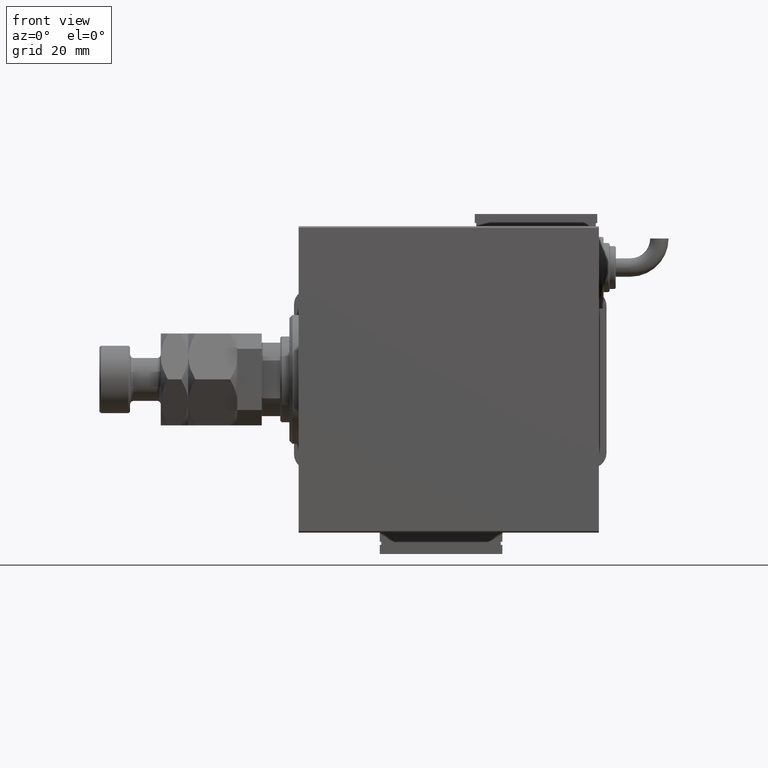
[diagram: clean part render]
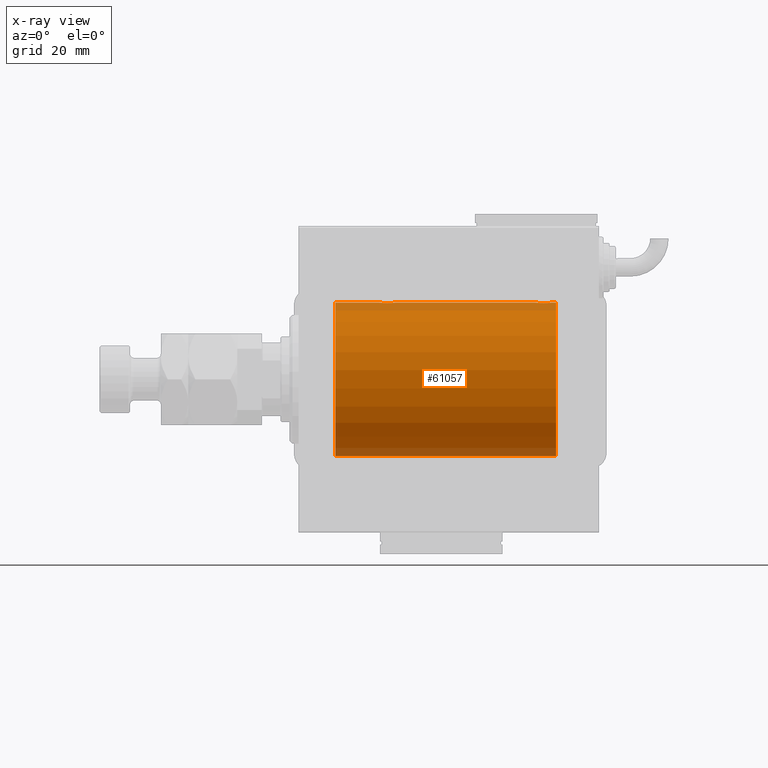
[diagram: x-ray — body ghosted, one internal face saturated and labeled with its STEP entity id]
A machine part, front view, then the same camera in x-ray: the body is ghosted and one INTERNAL B-rep face — a face not visible from any outside direction — is saturated and labeled: STEP entity #61057.
In plain terms, the highlighted cylindrical surface (partial cylindrical patch) has radius 25 mm, axis along (-1, -0, -0).
Its self-contained STEP definition (entity closure, byte-faithful):
#1568 = CARTESIAN_POINT ( 'NONE',  ( 84.00000000000000000, 3.061616997868382254E-15, -25.00000000000000000 ) ) ;
#1970 = CARTESIAN_POINT ( 'NONE',  ( 77.82988709719073483, -1.252049606094335799, 24.96900299967626680 ) ) ;
#2049 = AXIS2_PLACEMENT_3D ( 'NONE', #56842, #17688, #3902 ) ;
#2091 = EDGE_CURVE ( 'NONE', #7815, #15046, #14760, .T. ) ;
#2277 = CARTESIAN_POINT ( 'NONE',  ( 77.57985090779074255, -0.6480119923854255060, 24.99212088949390775 ) ) ;
#2335 = CARTESIAN_POINT ( 'NONE',  ( 30.52256774340189693, -1.989585286700249700, 24.92087098724766747 ) ) ;
#3902 = DIRECTION ( 'NONE',  ( 0.000000000000000000, 0.000000000000000000, 1.000000000000000000 ) ) ;
#4083 = CARTESIAN_POINT ( 'NONE',  ( 27.01250184165601809, -1.525407911884372192, 24.95379469572361941 ) ) ;
#5262 = ORIENTED_EDGE ( 'NONE', *, *, #28047, .F. ) ;
#5883 = AXIS2_PLACEMENT_3D ( 'NONE', #29724, #48838, #25028 ) ;
#6128 = EDGE_CURVE ( 'NONE', #7815, #43250, #59913, .T. ) ;
#6185 = ORIENTED_EDGE ( 'NONE', *, *, #2091, .T. ) ;
#6762 = EDGE_CURVE ( 'NONE', #11046, #54743, #54265, .T. ) ;
#7018 = CARTESIAN_POINT ( 'NONE',  ( 28.35095609830903740, -2.419770561643915130, 24.88263927071751169 ) ) ;
#7323 = CARTESIAN_POINT ( 'NONE',  ( 31.50000000000000000, -2.695968940278339017E-15, 25.00000000000000000 ) ) ;
#7633 = CARTESIAN_POINT ( 'NONE',  ( 28.83293504821940090, -2.499872792855088122, 24.87469871246082320 ) ) ;
#7815 = VERTEX_POINT ( 'NONE', #1568 ) ;
#8180 = CARTESIAN_POINT ( 'NONE',  ( 82.43349355239749343, -0.6588655613945808565, 24.99312727339970053 ) ) ;
#8790 = CARTESIAN_POINT ( 'NONE',  ( 81.52256774340189338, -1.989585286700245925, 24.92087098724765681 ) ) ;
#11046 = VERTEX_POINT ( 'NONE', #53806 ) ;
#11649 = CARTESIAN_POINT ( 'NONE',  ( 78.74616804575498463, -2.169003991399877762, 24.90589728951138682 ) ) ;
#11710 = CARTESIAN_POINT ( 'NONE',  ( 30.65121133559112820, -1.884161199660620900, 24.92916496727982434 ) ) ;
#12020 = CARTESIAN_POINT ( 'NONE',  ( 31.43349355239747567, -0.6588655613945894052, 24.99312727339970053 ) ) ;
#12326 = CARTESIAN_POINT ( 'NONE',  ( 27.74616804575498108, -2.169003991399877318, 24.90589728951138326 ) ) ;
#12881 = CARTESIAN_POINT ( 'NONE',  ( 81.88185954148649159, -1.653834020452933817, 24.94550385189585029 ) ) ;
#13488 = CARTESIAN_POINT ( 'NONE',  ( 80.80435660916305096, -2.372734907014176553, 24.88722742718433523 ) ) ;
#13724 = DIRECTION ( 'NONE',  ( -1.000000000000000000, 0.000000000000000000, 0.000000000000000000 ) ) ;
#14148 = ORIENTED_EDGE ( 'NONE', *, *, #6762, .T. ) ;
#14760 = LINE ( 'NONE', #33894, #26791 ) ;
#14877 = VECTOR ( 'NONE', #29062, 1000.000000000000000 ) ;
#14982 = AXIS2_PLACEMENT_3D ( 'NONE', #48182, #13724, #28459 ) ;
#15046 = VERTEX_POINT ( 'NONE', #52080 ) ;
#15358 = VECTOR ( 'NONE', #45778, 1000.000000000000000 ) ;
#16059 = CARTESIAN_POINT ( 'NONE',  ( 77.50000000000001421, -1.940203396391078535E-23, 25.00000000000000000 ) ) ;
#16368 = CARTESIAN_POINT ( 'NONE',  ( 78.47463817756926119, -1.987446652080270271, 24.92104239223421303 ) ) ;
#16425 = CARTESIAN_POINT ( 'NONE',  ( 29.32596570039460104, -2.484007091859769645, 24.87630842367763506 ) ) ;
#16674 = CARTESIAN_POINT ( 'NONE',  ( 79.35095609830904095, -2.419770561643911133, 24.88263927071751169 ) ) ;
#16734 = CARTESIAN_POINT ( 'NONE',  ( 26.75239748980448695, -1.106703319666887397, 24.97594585958023572 ) ) ;
#17252 = CARTESIAN_POINT ( 'NONE',  ( 84.00000000000000000, 0.000000000000000000, 25.00000000000000000 ) ) ;
#17688 = DIRECTION ( 'NONE',  ( -1.000000000000000000, -0.000000000000000000, -0.000000000000000000 ) ) ;
#18201 = CARTESIAN_POINT ( 'NONE',  ( 80.32596570039464723, -2.484007091859765204, 24.87630842367763861 ) ) ;
#18709 = DIRECTION ( 'NONE',  ( -1.000000000000000000, -0.000000000000000000, -0.000000000000000000 ) ) ;
#20004 = VECTOR ( 'NONE', #18709, 1000.000000000000000 ) ;
#21074 = CARTESIAN_POINT ( 'NONE',  ( 78.01250184165604651, -1.525407911884365530, 24.95379469572362297 ) ) ;
#21286 = LINE ( 'NONE', #59493, #14877 ) ;
#21347 = VERTEX_POINT ( 'NONE', #35096 ) ;
#21437 = CARTESIAN_POINT ( 'NONE',  ( 31.16827641493956591, -1.255214705003184106, 24.96884293994578385 ) ) ;
#21547 = EDGE_CURVE ( 'NONE', #11046, #55002, #21286, .T. ) ;
#22246 = EDGE_LOOP ( 'NONE', ( #22859, #6185, #51039, #51209, #14148, #55490, #23890, #5262 ) ) ;
#22859 = ORIENTED_EDGE ( 'NONE', *, *, #6128, .F. ) ;
#23106 = LINE ( 'NONE', #36918, #20004 ) ;
#23890 = ORIENTED_EDGE ( 'NONE', *, *, #55555, .T. ) ;
#25028 = DIRECTION ( 'NONE',  ( 0.000000000000000000, 0.000000000000000000, 1.000000000000000000 ) ) ;
#26087 = CARTESIAN_POINT ( 'NONE',  ( 79.19211657594196652, -2.371528299825750974, 24.88734287464371420 ) ) ;
#26143 = CARTESIAN_POINT ( 'NONE',  ( 28.19211657594193809, -2.371528299825754083, 24.88734287464370709 ) ) ;
#26791 = VECTOR ( 'NONE', #52991, 1000.000000000000000 ) ;
#27305 = CARTESIAN_POINT ( 'NONE',  ( 81.98538033717099438, -1.528152964861309915, 24.95362559291379156 ) ) ;
#27616 = CARTESIAN_POINT ( 'NONE',  ( 81.10723845838413126, -2.247417070759898383, 24.89885693081947338 ) ) ;
#28047 = EDGE_CURVE ( 'NONE', #43250, #21347, #23106, .T. ) ;
#28459 = DIRECTION ( 'NONE',  ( 0.000000000000000000, 0.000000000000000000, 1.000000000000000000 ) ) ;
#29062 = DIRECTION ( 'NONE',  ( -1.000000000000000000, -0.000000000000000000, -0.000000000000000000 ) ) ;
#29724 = CARTESIAN_POINT ( 'NONE',  ( 84.00000000000000000, 0.000000000000000000, 0.000000000000000000 ) ) ;
#30466 = CARTESIAN_POINT ( 'NONE',  ( 77.51582159942344674, -0.3254210271412246169, 24.99840249400844883 ) ) ;
#30781 = CARTESIAN_POINT ( 'NONE',  ( 78.88963203491135801, -2.245863995402903601, 24.89899750494197050 ) ) ;
#30840 = CARTESIAN_POINT ( 'NONE',  ( 30.88185954148645962, -1.653834020452941589, 24.94550385189585029 ) ) ;
#31091 = CARTESIAN_POINT ( 'NONE',  ( 79.83293504821945419, -2.499872792855085013, 24.87469871246082675 ) ) ;
#31151 = CARTESIAN_POINT ( 'NONE',  ( 31.49999999999998579, -0.3305063766663723368, 25.00000000000000000 ) ) ;
#31457 = CARTESIAN_POINT ( 'NONE',  ( 28.67052319885732103, -2.483544361357276742, 24.87635491893501438 ) ) ;
#32014 = CARTESIAN_POINT ( 'NONE',  ( 81.65121133559114242, -1.884161199660613351, 24.92916496727982434 ) ) ;
#32317 = CARTESIAN_POINT ( 'NONE',  ( 82.16827641493958367, -1.255214705003178777, 24.96884293994578030 ) ) ;
#32425 = FACE_OUTER_BOUND ( 'NONE', #22246, .T. ) ;
#32936 = CARTESIAN_POINT ( 'NONE',  ( 81.25084023924057419, -2.170728182476720836, 24.90574631553725027 ) ) ;
#33894 = CARTESIAN_POINT ( 'NONE',  ( 84.00000000000000000, 3.061616997868382254E-15, -25.00000000000000000 ) ) ;
#34345 = VERTEX_POINT ( 'NONE', #52775 ) ;
#34553 = CARTESIAN_POINT ( 'NONE',  ( 11.99999999999999645, 0.000000000000000000, 25.00000000000000000 ) ) ;
#35096 = CARTESIAN_POINT ( 'NONE',  ( 82.50000000000001421, 2.858952873890094713E-15, 25.00000000000000000 ) ) ;
#35191 = CARTESIAN_POINT ( 'NONE',  ( 77.50000000000004263, -0.1631750940176218967, 25.00000000000000355 ) ) ;
#35247 = CARTESIAN_POINT ( 'NONE',  ( 27.47463817756919369, -1.987446652080268938, 24.92104239223420592 ) ) ;
#35560 = CARTESIAN_POINT ( 'NONE',  ( 30.10723845838410284, -2.247417070759902380, 24.89885693081946272 ) ) ;
#35819 = CARTESIAN_POINT ( 'NONE',  ( 79.67052319885733880, -2.483544361357273189, 24.87635491893502149 ) ) ;
#35876 = CARTESIAN_POINT ( 'NONE',  ( 29.64560666148631896, -2.420689345803764159, 24.88254961038873958 ) ) ;
#36181 = CARTESIAN_POINT ( 'NONE',  ( 26.51582159942343608, -0.3254210271412232292, 24.99840249400844883 ) ) ;
#36481 = CARTESIAN_POINT ( 'NONE',  ( 26.57985090779070703, -0.6480119923854241737, 24.99212088949390420 ) ) ;
#36918 = CARTESIAN_POINT ( 'NONE',  ( 84.00000000000000000, 0.000000000000000000, 25.00000000000000000 ) ) ;
#37330 = CARTESIAN_POINT ( 'NONE',  ( 82.50000000000001421, 2.858952873890094713E-15, 25.00000000000000000 ) ) ;
#37431 = CYLINDRICAL_SURFACE ( 'NONE', #2049, 25.00000000000000000 ) ;
#37820 = EDGE_CURVE ( 'NONE', #34345, #54743, #49536, .T. ) ;
#39325 = CARTESIAN_POINT ( 'NONE',  ( 31.50000000000000000, -2.695968940278339017E-15, 25.00000000000000000 ) ) ;
#40196 = CARTESIAN_POINT ( 'NONE',  ( 78.11587617213530166, -1.651251241585109275, 24.94567559498348785 ) ) ;
#40253 = CARTESIAN_POINT ( 'NONE',  ( 26.50000000000000355, -1.940558383798427991E-23, 25.00000000000000000 ) ) ;
#42025 = CARTESIAN_POINT ( 'NONE',  ( 80.16323589638544433, -2.500125740978196731, 24.87467329022545925 ) ) ;
#43250 = VERTEX_POINT ( 'NONE', #56073 ) ;
#44890 = CARTESIAN_POINT ( 'NONE',  ( 77.75239748980452248, -1.106703319666889396, 24.97594585958023572 ) ) ;
#45259 = CARTESIAN_POINT ( 'NONE',  ( 27.11587617213528745, -1.651251241585107055, 24.94567559498349141 ) ) ;
#45569 = CARTESIAN_POINT ( 'NONE',  ( 26.50000000000000711, -0.1631750940176214526, 25.00000000000000711 ) ) ;
#45778 = DIRECTION ( 'NONE',  ( -1.000000000000000000, -0.000000000000000000, -0.000000000000000000 ) ) ;
#45870 = CARTESIAN_POINT ( 'NONE',  ( 29.80435660916301899, -2.372734907014179662, 24.88722742718433878 ) ) ;
#48182 = CARTESIAN_POINT ( 'NONE',  ( 11.99999999999999645, 0.000000000000000000, 0.000000000000000000 ) ) ;
#48838 = DIRECTION ( 'NONE',  ( -1.000000000000000000, 0.000000000000000000, 0.000000000000000000 ) ) ;
#49536 = LINE ( 'NONE', #17252, #15358 ) ;
#49578 = CARTESIAN_POINT ( 'NONE',  ( 77.62784030591393503, -0.8058335233485520721, 24.98746277938383287 ) ) ;
#49953 = CARTESIAN_POINT ( 'NONE',  ( 30.98538033717095175, -1.528152964861314800, 24.95362559291378801 ) ) ;
#50259 = CARTESIAN_POINT ( 'NONE',  ( 26.62784030591392437, -0.8058335233485491855, 24.98746277938383287 ) ) ;
#50562 = CARTESIAN_POINT ( 'NONE',  ( 27.34616663850662377, -1.881857718844722971, 24.92933960374833902 ) ) ;
#51039 = ORIENTED_EDGE ( 'NONE', *, *, #60306, .T. ) ;
#51122 = CARTESIAN_POINT ( 'NONE',  ( 82.24606379094068132, -1.109818057797411051, 24.97580694515542277 ) ) ;
#51209 = ORIENTED_EDGE ( 'NONE', *, *, #21547, .F. ) ;
#52080 = CARTESIAN_POINT ( 'NONE',  ( 11.99999999999999645, 3.061616997868382254E-15, -25.00000000000000000 ) ) ;
#52775 = CARTESIAN_POINT ( 'NONE',  ( 77.50000000000001421, -1.940203396391078535E-23, 25.00000000000000000 ) ) ;
#52991 = DIRECTION ( 'NONE',  ( -1.000000000000000000, -0.000000000000000000, -0.000000000000000000 ) ) ;
#53013 = CIRCLE ( 'NONE', #14982, 25.00000000000000000 ) ;
#53806 = CARTESIAN_POINT ( 'NONE',  ( 26.50000000000000355, -1.940558383798427991E-23, 25.00000000000000000 ) ) ;
#54265 = B_SPLINE_CURVE_WITH_KNOTS ( 'NONE', 3,
 ( #40253, #45569, #36181, #36481, #50259, #16734, #55264, #4083, #45259, #50562, #35247, #12326, #54342, #26143, #7018, #31457, #7633, #59339, #16425, #35876, #45870, #35560, #54651, #2335, #11710, #30840, #49953, #21437, #54955, #12020, #31151, #7323 ),
 .UNSPECIFIED., .F., .F.,
 ( 4, 2, 2, 2, 2, 2, 2, 2, 2, 2, 2, 2, 2, 2, 2, 4 ),
 ( 0.007821024441662254717, 0.008309723826317859385, 0.008798423210973465788, 0.009287122595629072191, 0.009775821980284676860, 0.01026452136494028153, 0.01075322074959588793, 0.01124192013425149433, 0.01173061951890709900, 0.01221931890356270367, 0.01270801828821831007, 0.01319671767287391648, 0.01368541705752952115, 0.01417411644218512581, 0.01466281582684073222, 0.01564021459615194329 ),
 .UNSPECIFIED. ) ;
#54342 = CARTESIAN_POINT ( 'NONE',  ( 27.88963203491136156, -2.245863995402906266, 24.89899750494197050 ) ) ;
#54651 = CARTESIAN_POINT ( 'NONE',  ( 30.25084023924055998, -2.170728182476724388, 24.90574631553725027 ) ) ;
#54743 = VERTEX_POINT ( 'NONE', #39325 ) ;
#54955 = CARTESIAN_POINT ( 'NONE',  ( 31.24606379094067066, -1.109818057797418822, 24.97580694515541921 ) ) ;
#55002 = VERTEX_POINT ( 'NONE', #34553 ) ;
#55264 = CARTESIAN_POINT ( 'NONE',  ( 26.82988709719075970, -1.252049606094344236, 24.96900299967627390 ) ) ;
#55490 = ORIENTED_EDGE ( 'NONE', *, *, #37820, .F. ) ;
#55555 = EDGE_CURVE ( 'NONE', #34345, #21347, #56253, .T. ) ;
#56073 = CARTESIAN_POINT ( 'NONE',  ( 84.00000000000000000, 0.000000000000000000, 25.00000000000000000 ) ) ;
#56253 = B_SPLINE_CURVE_WITH_KNOTS ( 'NONE', 3,
 ( #16059, #35191, #30466, #2277, #49578, #44890, #1970, #21074, #40196, #59281, #16368, #11649, #30781, #26087, #16674, #35819, #31091, #42025, #18201, #61723, #13488, #27616, #32936, #8790, #32014, #12881, #27305, #32317, #51122, #8180, #56430, #37330 ),
 .UNSPECIFIED., .F., .F.,
 ( 4, 2, 2, 2, 2, 2, 2, 2, 2, 2, 2, 2, 2, 2, 2, 4 ),
 ( 0.007821024441662285942, 0.008309723826317894080, 0.008798423210973503952, 0.009287122595629112090, 0.009775821980284721963, 0.01026452136494033010, 0.01075322074959593997, 0.01124192013425154811, 0.01173061951890715798, 0.01221931890356276612, 0.01270801828821837426, 0.01319671767287398240, 0.01368541705752959400, 0.01417411644218520214, 0.01466281582684081028, 0.01564021459615201268 ),
 .UNSPECIFIED. ) ;
#56430 = CARTESIAN_POINT ( 'NONE',  ( 82.50000000000005684, -0.3305063766663757230, 25.00000000000000711 ) ) ;
#56842 = CARTESIAN_POINT ( 'NONE',  ( 84.00000000000000000, 0.000000000000000000, 0.000000000000000000 ) ) ;
#59281 = CARTESIAN_POINT ( 'NONE',  ( 78.34616663850664509, -1.881857718844724303, 24.92933960374833902 ) ) ;
#59339 = CARTESIAN_POINT ( 'NONE',  ( 29.16323589638543368, -2.500125740978199840, 24.87467329022545570 ) ) ;
#59493 = CARTESIAN_POINT ( 'NONE',  ( 84.00000000000000000, 0.000000000000000000, 25.00000000000000000 ) ) ;
#59913 = CIRCLE ( 'NONE', #5883, 25.00000000000000000 ) ;
#60306 = EDGE_CURVE ( 'NONE', #15046, #55002, #53013, .T. ) ;
#61057 = ADVANCED_FACE ( 'NONE', ( #32425 ), #37431, .F. ) ;
#61723 = CARTESIAN_POINT ( 'NONE',  ( 80.64560666148635448, -2.420689345803758830, 24.88254961038874313 ) ) ;